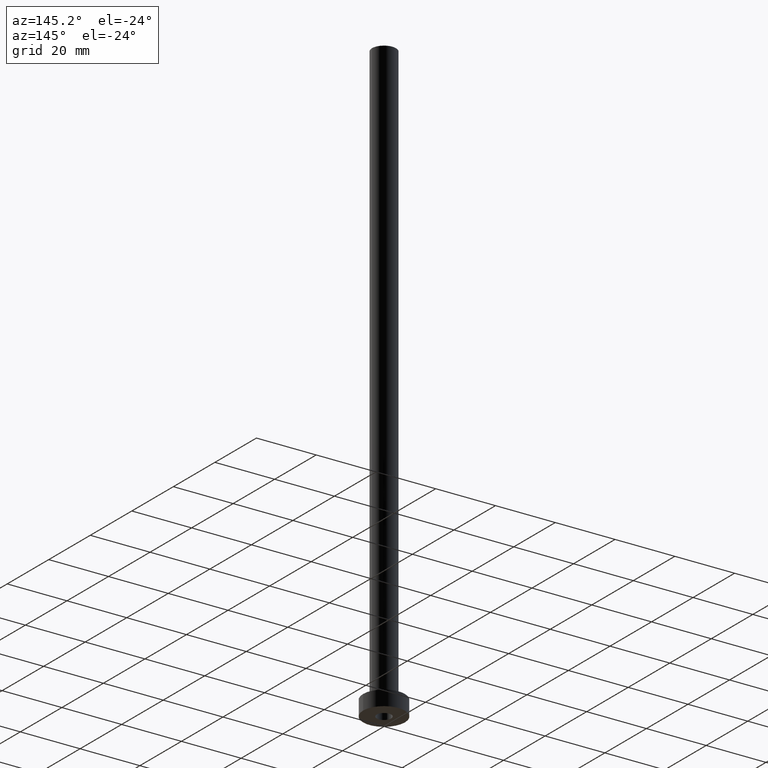
[diagram: clean part render]
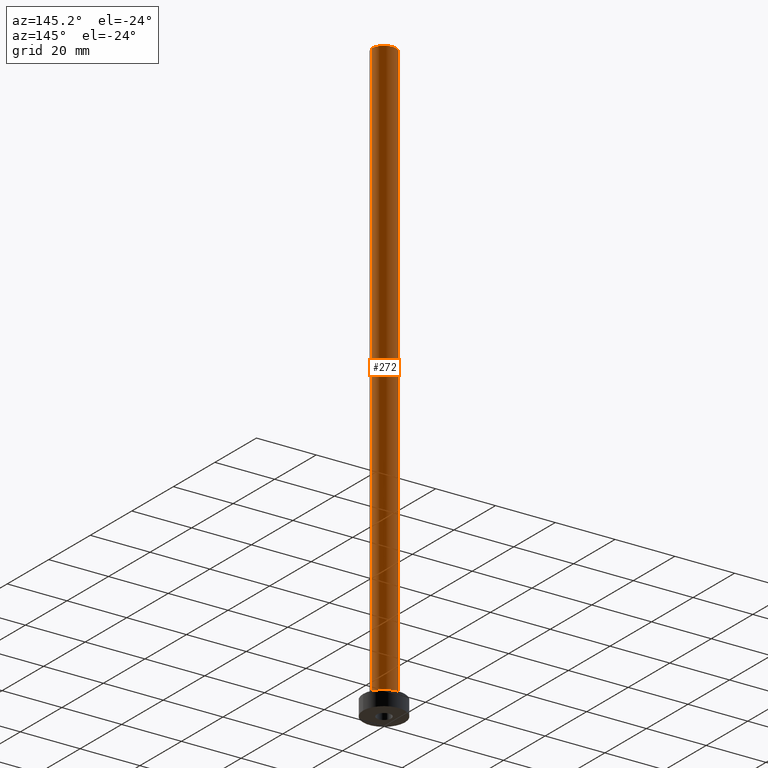
[diagram: same view with one face highlighted and labeled with its STEP entity id]
A machine part, auxiliary view. The second image highlights one B-rep face of the part: STEP entity #272.
In plain terms, the highlighted cylindrical surface (edge-blend (fillet) strip) has radius 4 mm, axis along (-0, -0, -1).
Its self-contained STEP definition (entity closure, byte-faithful):
#17 = CYLINDRICAL_SURFACE ( 'NONE', #406, 4.000000000000000000 ) ;
#24 = ORIENTED_EDGE ( 'NONE', *, *, #322, .T. ) ;
#28 = EDGE_CURVE ( 'NONE', #94, #354, #335, .T. ) ;
#38 = LINE ( 'NONE', #319, #292 ) ;
#48 = VECTOR ( 'NONE', #251, 1000.000000000000000 ) ;
#50 = EDGE_CURVE ( 'NONE', #94, #241, #178, .T. ) ;
#51 = CARTESIAN_POINT ( 'NONE',  ( -4.000000000000000000, 0.000000000000000000, 200.0000000000000000 ) ) ;
#67 = CARTESIAN_POINT ( 'NONE',  ( 0.000000000000000000, 0.000000000000000000, 5.500000000000005329 ) ) ;
#94 = VERTEX_POINT ( 'NONE', #141 ) ;
#109 = CARTESIAN_POINT ( 'NONE',  ( 4.000000000000000000, 4.898587196589412829E-16, 200.0000000000000000 ) ) ;
#141 = CARTESIAN_POINT ( 'NONE',  ( 4.000000000000000000, 4.898587196589412829E-16, 200.0000000000000000 ) ) ;
#144 = EDGE_CURVE ( 'NONE', #241, #225, #38, .T. ) ;
#156 = CARTESIAN_POINT ( 'NONE',  ( 0.000000000000000000, 0.000000000000000000, 200.0000000000000000 ) ) ;
#159 = AXIS2_PLACEMENT_3D ( 'NONE', #256, #179, #330 ) ;
#167 = DIRECTION ( 'NONE',  ( 0.000000000000000000, 0.000000000000000000, 1.000000000000000000 ) ) ;
#178 = CIRCLE ( 'NONE', #159, 4.000000000000000000 ) ;
#179 = DIRECTION ( 'NONE',  ( 0.000000000000000000, 0.000000000000000000, 1.000000000000000000 ) ) ;
#198 = FACE_OUTER_BOUND ( 'NONE', #273, .T. ) ;
#211 = ORIENTED_EDGE ( 'NONE', *, *, #144, .F. ) ;
#225 = VERTEX_POINT ( 'NONE', #339 ) ;
#241 = VERTEX_POINT ( 'NONE', #51 ) ;
#251 = DIRECTION ( 'NONE',  ( -0.000000000000000000, -0.000000000000000000, -1.000000000000000000 ) ) ;
#256 = CARTESIAN_POINT ( 'NONE',  ( 0.000000000000000000, 0.000000000000000000, 200.0000000000000000 ) ) ;
#272 = ADVANCED_FACE ( 'NONE', ( #198 ), #17, .T. ) ;
#273 = EDGE_LOOP ( 'NONE', ( #312, #421, #24, #211 ) ) ;
#292 = VECTOR ( 'NONE', #460, 1000.000000000000000 ) ;
#312 = ORIENTED_EDGE ( 'NONE', *, *, #50, .F. ) ;
#319 = CARTESIAN_POINT ( 'NONE',  ( -4.000000000000000000, 0.000000000000000000, 200.0000000000000000 ) ) ;
#322 = EDGE_CURVE ( 'NONE', #354, #225, #403, .T. ) ;
#330 = DIRECTION ( 'NONE',  ( 1.000000000000000000, 0.000000000000000000, 0.000000000000000000 ) ) ;
#335 = LINE ( 'NONE', #109, #48 ) ;
#339 = CARTESIAN_POINT ( 'NONE',  ( -4.000000000000000000, 0.000000000000000000, 5.500000000000005329 ) ) ;
#354 = VERTEX_POINT ( 'NONE', #455 ) ;
#355 = DIRECTION ( 'NONE',  ( 1.000000000000000000, 0.000000000000000000, 0.000000000000000000 ) ) ;
#367 = AXIS2_PLACEMENT_3D ( 'NONE', #67, #167, #355 ) ;
#372 = DIRECTION ( 'NONE',  ( -0.000000000000000000, -0.000000000000000000, -1.000000000000000000 ) ) ;
#403 = CIRCLE ( 'NONE', #367, 4.000000000000000000 ) ;
#406 = AXIS2_PLACEMENT_3D ( 'NONE', #156, #372, #447 ) ;
#421 = ORIENTED_EDGE ( 'NONE', *, *, #28, .T. ) ;
#447 = DIRECTION ( 'NONE',  ( -1.000000000000000000, 0.000000000000000000, 0.000000000000000000 ) ) ;
#455 = CARTESIAN_POINT ( 'NONE',  ( 4.000000000000000000, 4.898587196589412829E-16, 5.500000000000005329 ) ) ;
#460 = DIRECTION ( 'NONE',  ( -0.000000000000000000, -0.000000000000000000, -1.000000000000000000 ) ) ;